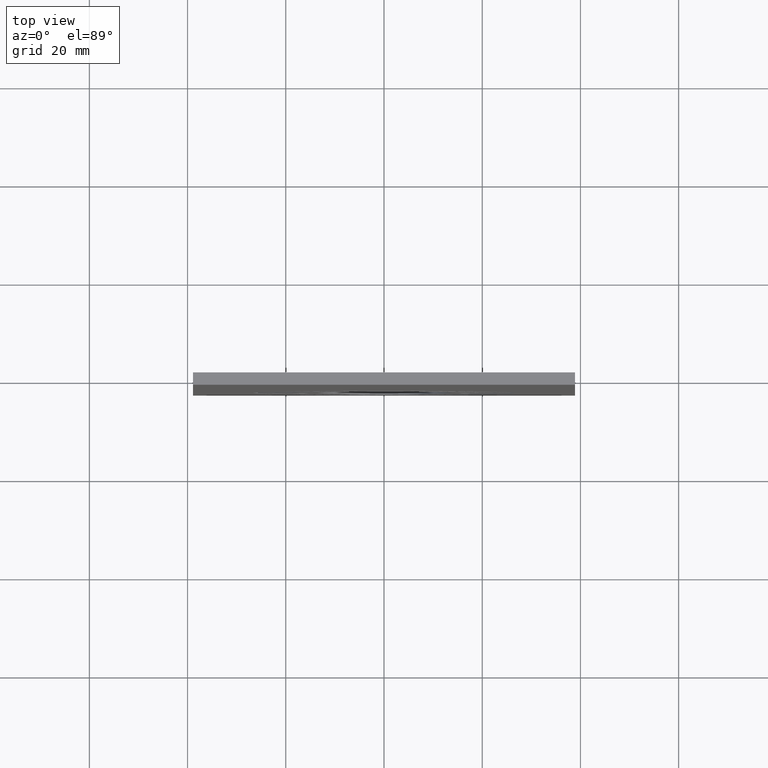
[diagram: clean part render]
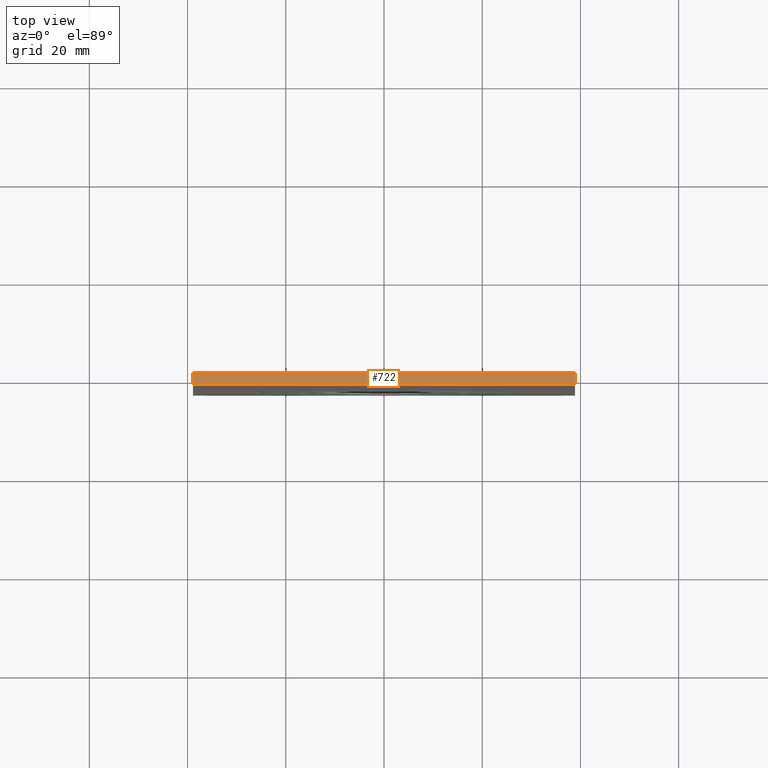
[diagram: same view with one face highlighted and labeled with its STEP entity id]
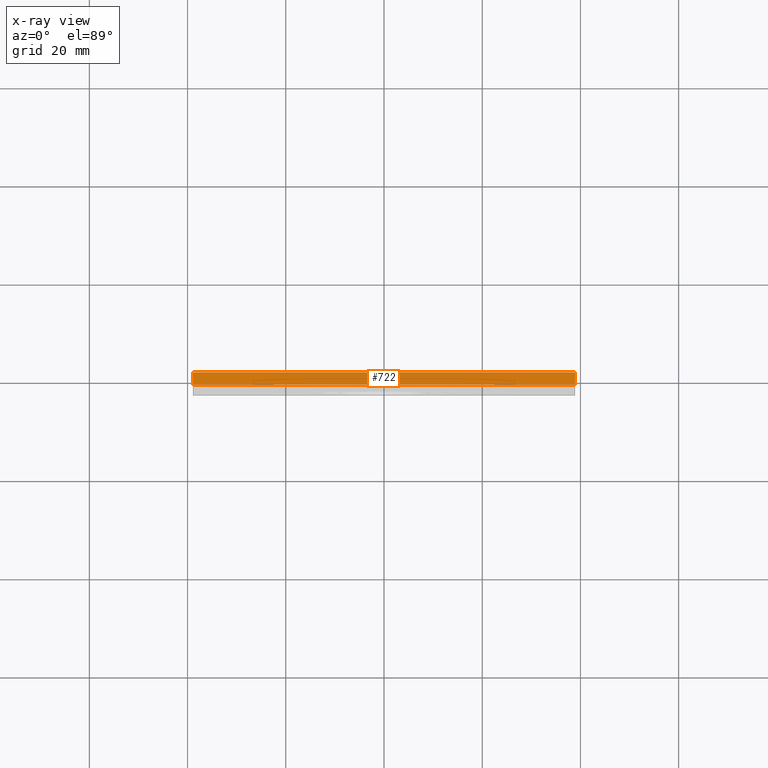
[diagram: x-ray of the same camera — body ghosted, the highlighted face saturated]
A machine part, top view. The second image highlights one B-rep face of the part: STEP entity #722.
The next image is the same camera in x-ray: the body ghosted, the highlighted face saturated — about 0% of this face is hidden behind the body in this view.
In plain terms, the highlighted planar face has unit normal (0, 0, 1).
Its self-contained STEP definition (entity closure, byte-faithful):
#44=PLANE('',#809);
#80=FACE_OUTER_BOUND('',#116,.T.);
#116=EDGE_LOOP('',(#599,#600,#601,#602));
#184=LINE('',#1216,#250);
#192=LINE('',#1231,#258);
#193=LINE('',#1233,#259);
#194=LINE('',#1234,#260);
#250=VECTOR('',#1006,10.);
#258=VECTOR('',#1018,10.);
#259=VECTOR('',#1021,10.);
#260=VECTOR('',#1022,10.);
#358=VERTEX_POINT('',#1213);
#359=VERTEX_POINT('',#1215);
#363=VERTEX_POINT('',#1227);
#364=VERTEX_POINT('',#1229);
#456=EDGE_CURVE('',#358,#359,#184,.T.);
#464=EDGE_CURVE('',#363,#364,#192,.T.);
#465=EDGE_CURVE('',#358,#363,#193,.T.);
#466=EDGE_CURVE('',#359,#364,#194,.T.);
#599=ORIENTED_EDGE('',*,*,#465,.T.);
#600=ORIENTED_EDGE('',*,*,#464,.T.);
#601=ORIENTED_EDGE('',*,*,#466,.F.);
#602=ORIENTED_EDGE('',*,*,#456,.F.);
#722=ADVANCED_FACE('',(#80),#44,.T.);
#809=AXIS2_PLACEMENT_3D('',#1232,#1019,#1020);
#1006=DIRECTION('',(0.,-1.,0.));
#1018=DIRECTION('',(0.,-1.,0.));
#1019=DIRECTION('center_axis',(0.,0.,1.));
#1020=DIRECTION('ref_axis',(-1.,0.,0.));
#1021=DIRECTION('',(-1.,0.,0.));
#1022=DIRECTION('',(-1.,0.,0.));
#1213=CARTESIAN_POINT('',(38.8874,0.,95.));
#1215=CARTESIAN_POINT('',(38.8874,-2.54,95.));
#1216=CARTESIAN_POINT('',(38.8874,0.,95.));
#1227=CARTESIAN_POINT('',(-38.8874,0.,95.));
#1229=CARTESIAN_POINT('',(-38.8874,-2.54,95.));
#1231=CARTESIAN_POINT('',(-38.8874,0.,95.));
#1232=CARTESIAN_POINT('Origin',(38.8874,0.,95.));
#1233=CARTESIAN_POINT('',(38.8874,0.,95.));
#1234=CARTESIAN_POINT('',(38.8874,-2.54,95.));